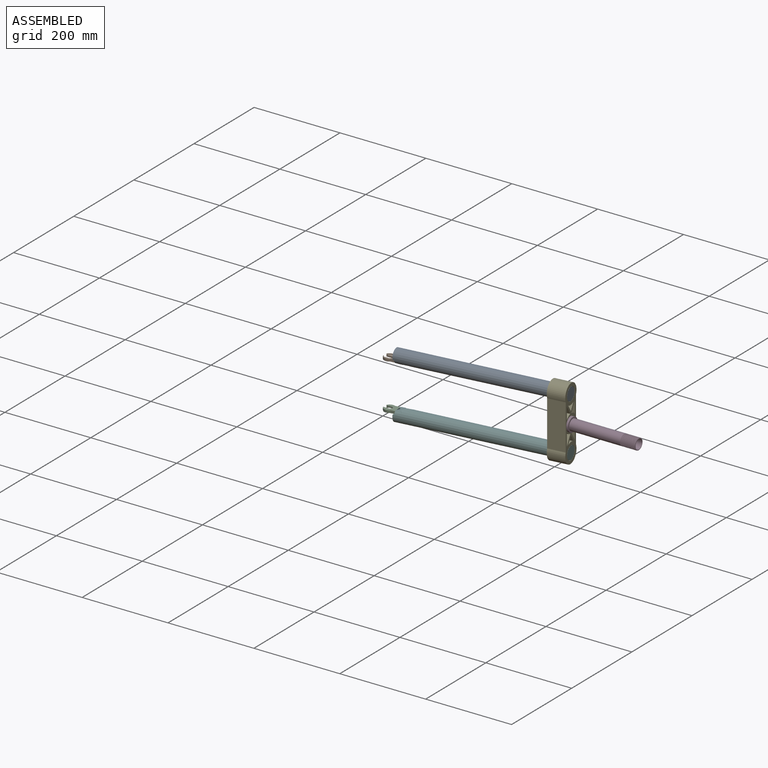
[diagram: assembled view]
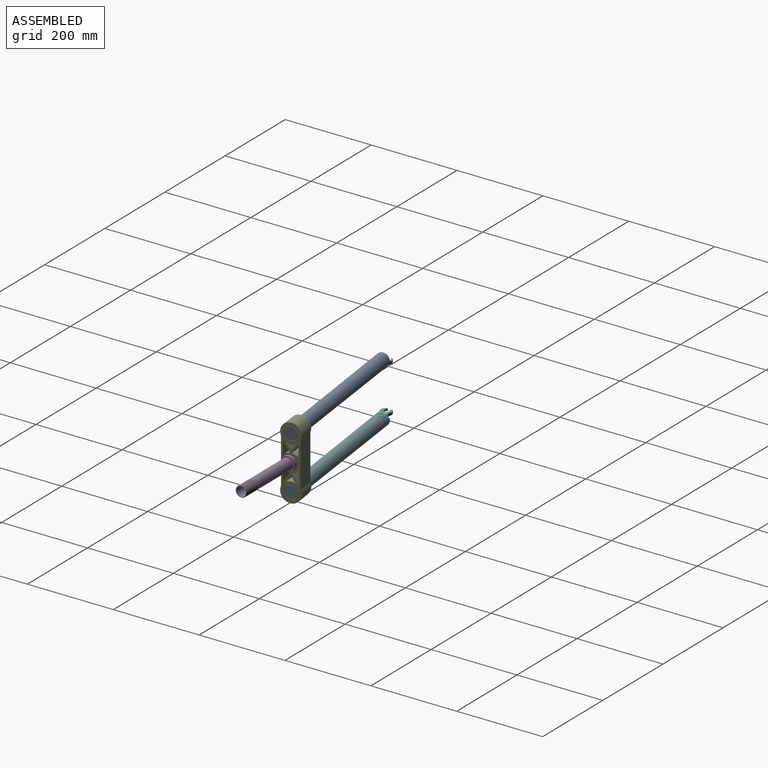
[diagram: assembled view, second angle]
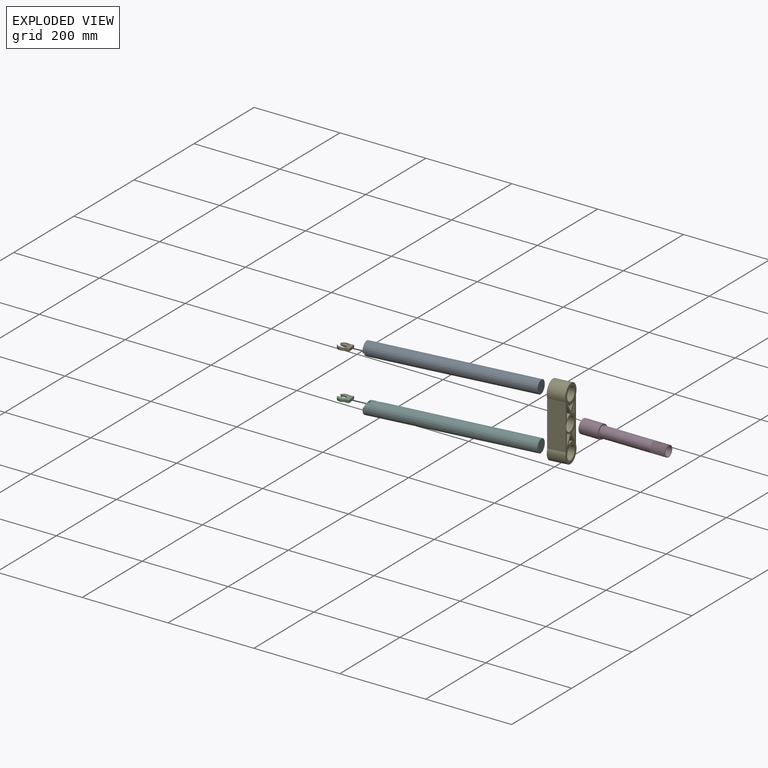
[diagram: exploded view]
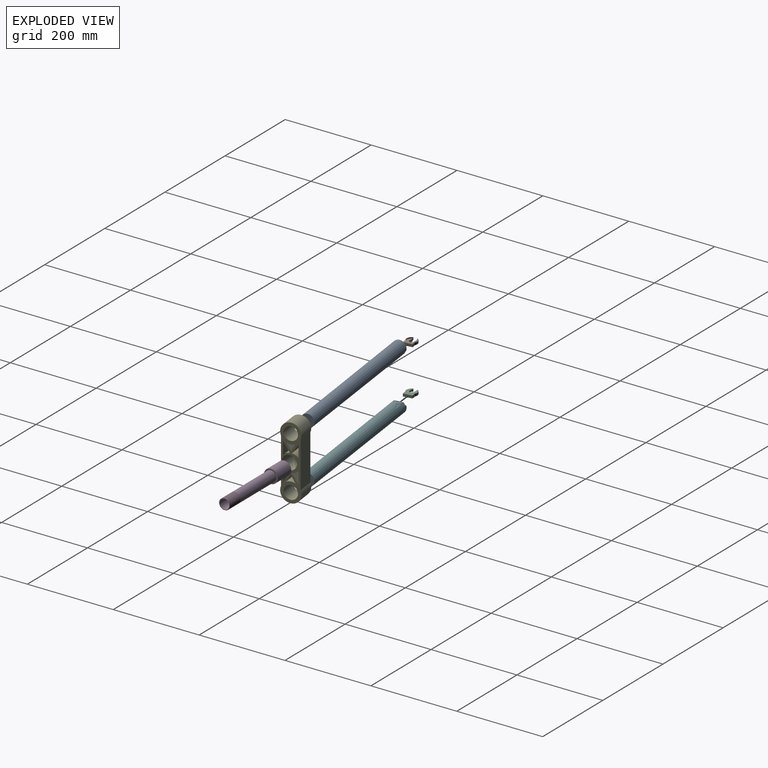
[diagram: exploded view, second angle]
ASSEMBLY  parts=6 mates=5
PART A: 10 faces, bbox 377.5x77.9x31 mm
  f0: cone r=12.71mm half-angle=89.9deg, axis (0.99,0.13,0), area 500.6mm2, adj f1,f6,f9
  f1: cone r=0.32mm half-angle=0.1deg, axis (-0.99,-0.13,0), area 8mm2, adj f0,f2
  f2: cone r=15.51mm half-angle=89.9deg, axis (0.99,0.13,0), area 522mm2, adj f1,f3,f7
  f3: cone r=15.51mm half-angle=0.1deg, axis (-0.99,-0.13,0), area 35749.7mm2, adj f2,f4,f7,f8,f9
  f4: plane 30.09x29.85mm, normal (0.99,0.13,0), area 711mm2, adj f3
  f5: cone r=12.75mm half-angle=89.9deg, axis (0.99,0.13,0), area 511mm2, adj f6
  f6: cone r=12.71mm half-angle=0deg, axis (0.99,0.13,0), area 29578.5mm2, adj f0,f5,f9
  f7: plane 29.7x6.86mm, normal (0,0,-1), area 93.4mm2, adj f2,f3,f8
  f8: plane 29.3x6.81mm, normal (-0.99,-0.13,0), area 176.9mm2, adj f3,f7,f9
  f9: plane 20.54x19.96mm, normal (-0.2,-0.03,-0.98), area 239.4mm2, adj f0,f3,f6,f8
PART B: 35 faces, bbox 31.1x27.6x6.2 mm
  f0: plane 29.65x24.84mm, normal (0,0,-1), area 429.1mm2, adj f6,f7,f8,f13,f16,f17,f18,f19
  f1: cylinder r=12.75mm len=20.17mm, axis (0,0,-1), area 125.4mm2, adj f8,f18,f21,f22
  f2: plane 29.65x24.84mm, normal (0,0,1), area 189.5mm2, adj f6,f7,f8,f11,f12,f14,f21,f28
  f3: cylinder r=11mm len=22mm, axis (0,0,1), area 66mm2, adj f24,f28,f31,f34
  f4: plane 21x19.75mm, normal (0,0,1), area 182.1mm2, adj f23,f26,f30,f31
  f5: cylinder r=12.75mm len=17.08mm, axis (0,0,-1), area 103.3mm2, adj f7,f12,f13,f14
  f6: plane 20.83x6.22mm, normal (0.99,0.13,0), area 130.5mm2, adj f0,f2,f7,f8
  f7: plane 10.85x6.22mm, normal (-0.13,0.99,0), area 62.5mm2, adj f0,f2,f5,f6,f12,f13
  f8: plane 10.85x6.22mm, normal (0.13,-0.99,0), area 62.5mm2, adj f0,f1,f2,f6,f18,f21
  f9: plane 11.63x5.22mm, normal (0.01,1,0), area 37.9mm2, adj f10,f19,f22,f29,f30,f33,f34
  f10: cylinder r=4.9mm len=9.8mm, axis (0,0,1), area 50.7mm2, adj f9,f11,f17,f26
  f11: plane 11.34x5.72mm, normal (-0.01,-1,0), area 37.5mm2, adj f2,f10,f14,f16,f23,f24,f27,f28
  f12: torus R=12.25mm, axis (0,0,-1), area 15.4mm2, adj f2,f5,f7,f14
  f13: torus R=12.25mm, axis (0,0,-1), area 15.1mm2, adj f0,f5,f7,f15
  f14: cylinder r=0.5mm len=5.72mm, axis (0,0,-1), area 5.7mm2, adj f2,f5,f11,f12,f15
  f15: sphere r=0.5mm, area 0.5mm2, adj f13,f14,f16
  f16: cylinder r=0.5mm len=11.35mm, axis (-1,0.01,0), area 8.9mm2, adj f0,f11,f15,f17
  f17: torus R=5.4mm, axis (0,0,-1), area 13.4mm2, adj f0,f10,f16,f19
  f18: torus R=12.25mm, axis (0,0,-1), area 18.4mm2, adj f0,f1,f8,f20
  f19: cylinder r=0.5mm len=11.64mm, axis (1,-0.01,0), area 9.1mm2, adj f0,f9,f17,f20
  f20: sphere r=0.5mm, area 0.5mm2, adj f18,f19,f22
  f21: torus R=12.25mm, axis (0,0,-1), area 18.4mm2, adj f1,f2,f8,f25
  f22: cylinder r=0.5mm len=5.22mm, axis (0,0,-1), area 5.2mm2, adj f1,f9,f20,f25
  f23: cylinder r=0.5mm len=9.32mm, axis (1,-0.01,0), area 7.3mm2, adj f4,f11,f26,f27
  f24: cylinder r=0.5mm len=1.57mm, axis (0,0,1), area 0.7mm2, adj f3,f11,f27,f28
  f25: sphere r=0.5mm, area 0.5mm2, adj f21,f22,f29
  f26: torus R=5.4mm, axis (0,0,1), area 13.4mm2, adj f4,f10,f23,f30
  f27: bspline ~1.51x1.12mm, area 0.8mm2, adj f11,f23,f24,f31
  f28: torus R=11.5mm, axis (0,0,-1), area 46.9mm2, adj f2,f3,f11,f24,f32
  f29: cylinder r=0.5mm len=0.84mm, axis (-1,0.01,0), area 0.7mm2, adj f2,f9,f25,f32
  f30: cylinder r=0.5mm len=9.68mm, axis (-1,0.01,0), area 7.6mm2, adj f4,f9,f26,f33
  f31: torus R=10.5mm, axis (0,0,1), area 44.8mm2, adj f3,f4,f27,f33
  f32: sphere r=0.5mm, area 0.3mm2, adj f28,f29,f34
  f33: bspline ~1.22x1.2mm, area 0.8mm2, adj f9,f30,f31,f34
  f34: cylinder r=0.5mm len=1.13mm, axis (0,0,1), area 0.6mm2, adj f3,f9,f32,f33
PART C: 44 faces, bbox 31.1x27.6x6.2 mm
  f0: plane 29.65x24.84mm, normal (0,0,1), area 429.1mm2, adj f6,f7,f8,f13,f15,f25,f34,f35
  f1: plane 29.65x24.84mm, normal (0,0,-1), area 189.1mm2, adj f6,f7,f8,f20,f30,f37,f41,f43
  f2: cylinder r=12.75mm len=20.17mm, axis (0,0,-1), area 125.4mm2, adj f7,f13,f19,f20
  f3: cylinder r=11mm len=22mm, axis (0,0,-1), area 66mm2, adj f28,f29,f36,f37
  f4: plane 21x19.75mm, normal (0,0,-1), area 182.1mm2, adj f17,f18,f27,f28
  f5: cylinder r=12.75mm len=17.08mm, axis (0,0,-1), area 103.3mm2, adj f6,f34,f40,f43
  f6: plane 10.85x6.22mm, normal (-0.13,0.99,0), area 62.5mm2, adj f0,f1,f5,f8,f34,f43
  f7: plane 10.85x6.22mm, normal (0.13,-0.99,0), area 62.5mm2, adj f0,f1,f2,f8,f13,f20
  f8: plane 20.83x6.22mm, normal (0.99,0.13,0), area 130.5mm2, adj f0,f1,f6,f7
  f9: plane 11.6x5.22mm, normal (0.01,1,0), area 37.8mm2, adj f15,f16,f18,f19,f23,f29,f30
  f10: cylinder r=4.9mm len=9.8mm, axis (0,0,1), area 50.6mm2, adj f16,f17,f25,f26
  f11: plane 11.31x5.22mm, normal (-0.01,-1,0), area 37mm2, adj f26,f27,f32,f35,f36,f40,f41
  f12: sphere r=0.5mm, area 0mm2, adj f16,f17,f18
  f13: torus R=12.25mm, axis (0,0,-1), area 18.4mm2, adj f0,f2,f7,f14
  f14: sphere r=0.5mm, area 0.5mm2, adj f13,f15,f19
  f15: cylinder r=0.5mm len=11.61mm, axis (-1,0.01,0), area 9.1mm2, adj f0,f9,f14,f21
  f16: cylinder r=0.5mm len=3.09mm, axis (0,0,1), area 0.2mm2, adj f9,f10,f12,f21
  f17: torus R=5.4mm, axis (0,0,-1), area 13.4mm2, adj f4,f10,f12,f22
  f18: cylinder r=0.5mm len=9.65mm, axis (1,-0.01,0), area 7.6mm2, adj f4,f9,f12,f23
  f19: cylinder r=0.5mm len=5.22mm, axis (0,0,-1), area 5.2mm2, adj f2,f9,f14,f24
  f20: torus R=12.25mm, axis (0,0,-1), area 18.4mm2, adj f1,f2,f7,f24
  f21: sphere r=0.5mm, area 0mm2, adj f15,f16,f25
  f22: sphere r=0.5mm, area 0mm2, adj f17,f26,f27
  f23: bspline ~1.47x1.11mm, area 0.8mm2, adj f9,f18,f28,f29
  f24: sphere r=0.5mm, area 0.5mm2, adj f19,f20,f30
  f25: torus R=5.4mm, axis (0,0,-1), area 13.4mm2, adj f0,f10,f21,f31
  f26: cylinder r=0.5mm len=3.09mm, axis (0,0,1), area 0.2mm2, adj f10,f11,f22,f31
  f27: cylinder r=0.5mm len=9.3mm, axis (-1,0.01,0), area 7.3mm2, adj f4,f11,f22,f32
  f28: torus R=10.5mm, axis (0,0,-1), area 44.8mm2, adj f3,f4,f23,f32
  f29: cylinder r=0.5mm len=1.13mm, axis (0,0,-1), area 0.6mm2, adj f3,f9,f23,f33
  f30: cylinder r=0.5mm len=0.84mm, axis (1,-0.01,0), area 0.7mm2, adj f1,f9,f24,f33
  f31: sphere r=0.5mm, area 0mm2, adj f25,f26,f35
  f32: bspline ~1.46x1.05mm, area 0.8mm2, adj f11,f27,f28,f36
  f33: sphere r=0.5mm, area 0.3mm2, adj f29,f30,f37
  f34: torus R=12.25mm, axis (0,0,-1), area 15.1mm2, adj f0,f5,f6,f38
  f35: cylinder r=0.5mm len=11.32mm, axis (1,-0.01,0), area 8.9mm2, adj f0,f11,f31,f38
  f36: cylinder r=0.5mm len=1.13mm, axis (0,0,-1), area 0.6mm2, adj f3,f11,f32,f39
  f37: torus R=11.5mm, axis (0,0,-1), area 46.6mm2, adj f1,f3,f33,f39
  f38: sphere r=0.5mm, area 0.5mm2, adj f34,f35,f40
  f39: sphere r=0.5mm, area 0.3mm2, adj f36,f37,f41
  f40: cylinder r=0.5mm len=5.22mm, axis (0,0,-1), area 5.4mm2, adj f5,f11,f38,f42
  f41: cylinder r=0.5mm len=0.86mm, axis (-1,0.01,0), area 0.7mm2, adj f1,f11,f39,f42
  f42: sphere r=0.5mm, area 0.5mm2, adj f40,f41,f43
  f43: torus R=12.25mm, axis (0,0,-1), area 15.1mm2, adj f1,f5,f6,f42
PART D: 42 faces, bbox 200.2x32.9x32.9 mm
  f0: cylinder r=12.7mm len=120.31mm, axis (-1,0,0), area 9493.2mm2, adj f31,f37,f39,f40,f41
  f1: cylinder r=12.7mm len=15.52mm, axis (-1,0,0), area 1.2mm2, adj f2,f36,f39,f40
  f2: cylinder r=12.7mm len=25.4mm, axis (-1,0,0), area 4mm2, adj f1,f3,f39,f40
  f3: cylinder r=12.7mm len=25.4mm, axis (-1,0,0), area 4.6mm2, adj f2,f4,f39,f40
  f4: cylinder r=12.7mm len=25.4mm, axis (-1,0,0), area 3.8mm2, adj f3,f5,f39,f40
  f5: cylinder r=12.7mm len=25.4mm, axis (-1,0,0), area 4.6mm2, adj f4,f6,f39,f40
  f6: cylinder r=12.7mm len=25.4mm, axis (-1,0,0), area 4.7mm2, adj f5,f7,f39,f40
  f7: cylinder r=12.7mm len=25.4mm, axis (-1,0,0), area 5.4mm2, adj f6,f8,f39,f40
  f8: cylinder r=12.7mm len=25.4mm, axis (-1,0,0), area 4.2mm2, adj f7,f9,f39,f40
  f9: cylinder r=12.7mm len=25.4mm, axis (-1,0,0), area 4.1mm2, adj f8,f10,f39,f40
  f10: cylinder r=12.7mm len=25.4mm, axis (-1,0,0), area 5mm2, adj f9,f11,f39,f40
  f11: cylinder r=12.7mm len=25.4mm, axis (-1,0,0), area 5.2mm2, adj f10,f12,f39,f40
  f12: cylinder r=12.7mm len=25.4mm, axis (-1,0,0), area 5.6mm2, adj f11,f13,f39,f40
  f13: cylinder r=12.7mm len=25.4mm, axis (-1,0,0), area 3.7mm2, adj f12,f14,f39,f40
  f14: cylinder r=12.7mm len=25.4mm, axis (-1,0,0), area 4.1mm2, adj f13,f15,f39,f40
  f15: cylinder r=12.7mm len=25.4mm, axis (-1,0,0), area 4.9mm2, adj f14,f16,f39,f40
  f16: cylinder r=12.7mm len=25.4mm, axis (-1,0,0), area 4.4mm2, adj f15,f17,f39,f40
  f17: cylinder r=12.7mm len=25.4mm, axis (-1,0,0), area 5.4mm2, adj f16,f18,f39,f40
  f18: cylinder r=12.7mm len=25.4mm, axis (-1,0,0), area 4.9mm2, adj f17,f19,f39,f40
  f19: cylinder r=12.7mm len=25.4mm, axis (-1,0,0), area 4.1mm2, adj f18,f20,f39,f40
  f20: cylinder r=12.7mm len=25.4mm, axis (-1,0,0), area 4.4mm2, adj f19,f21,f39,f40
  f21: cylinder r=12.7mm len=25.4mm, axis (-1,0,0), area 4.8mm2, adj f20,f22,f39,f40
  f22: cylinder r=12.7mm len=25.4mm, axis (-1,0,0), area 4.1mm2, adj f21,f23,f39,f40
  f23: cylinder r=12.7mm len=25.4mm, axis (-1,0,0), area 4.1mm2, adj f22,f24,f39,f40
  f24: cylinder r=12.7mm len=25.4mm, axis (-1,0,0), area 4.4mm2, adj f23,f25,f39,f40
  f25: cylinder r=12.7mm len=25.4mm, axis (-1,0,0), area 4.8mm2, adj f24,f26,f39,f40
  f26: cylinder r=12.7mm len=25.4mm, axis (-1,0,0), area 4.4mm2, adj f25,f27,f39,f40
  f27: cylinder r=12.7mm len=25.4mm, axis (-1,0,0), area 4.9mm2, adj f26,f28,f39,f40
  f28: cylinder r=12.7mm len=25.4mm, axis (-1,0,0), area 5.4mm2, adj f27,f29,f39,f40
  f29: cylinder r=12.7mm len=25.4mm, axis (-1,0,0), area 5mm2, adj f28,f30,f39,f40
  f30: cylinder r=12.7mm len=25.4mm, axis (-1,0,0), area 5mm2, adj f29,f31,f39,f40
  f31: cylinder r=12.7mm len=25.4mm, axis (-1,0,0), area 4.6mm2, adj f0,f30,f39,f40
  f32: plane 32.15x32.15mm, normal (-1,0,0), area 526.8mm2, adj f33,f38
  f33: cylinder r=9.53mm len=45mm, axis (-1,0,0), area 2693.1mm2, adj f32,f34
  f34: plane 22.3x22.3mm, normal (1,0,0), area 105.5mm2, adj f33,f35
  f35: cylinder r=11.15mm len=153.85mm, axis (-1,0,0), area 10778.3mm2, adj f34,f36
  f36: plane 25.33x25.3mm, normal (1,0,0), area 82.3mm2, adj f1,f35,f39,f40
  f37: plane 32.15x32.15mm, normal (1,0,0), area 305.1mm2, adj f0,f38
  f38: cylinder r=16.08mm len=45mm, axis (-1,0,0), area 4545.1mm2, adj f32,f37
  f39: bspline ~36.03x29.32mm, area 2567.6mm2, adj f0,f1,f2,f3,f4,f5,f6,f7
  f40: bspline ~35.48x25.4mm, area 2539.3mm2, adj f0,f1,f2,f3,f4,f5,f6,f7
  f41: plane 1.06x0.92mm, normal (0,0,-1), area 0.5mm2, adj f0,f39,f40
PART E: 27 faces, bbox 45.5x50.7x170 mm
  f0: plane 39.68x29.3mm, normal (0.13,-0.99,0), area 1171.9mm2, adj f1,f23,f24,f25
  f1: cylinder r=21.07mm len=41.47mm, axis (-0.99,-0.13,0), area 665mm2, adj f0,f23,f24,f25
  f2: plane 41.47x21.47mm, normal (0.11,-0.83,0.55), area 1029.1mm2, adj f3,f15,f24,f25
  f3: cylinder r=21.07mm len=41.47mm, axis (-0.99,-0.13,0), area 665mm2, adj f2,f15,f24,f25
  f4: plane 41.47x21.32mm, normal (-0.11,0.83,-0.55), area 1024.3mm2, adj f5,f16,f24,f25
  f5: cylinder r=21.07mm len=41.47mm, axis (-0.99,-0.13,0), area 664.8mm2, adj f4,f16,f24,f25
  f6: cylinder r=21.07mm len=41.47mm, axis (-0.99,-0.13,0), area 664.8mm2, adj f7,f17,f24,f25
  f7: plane 41.47x21.32mm, normal (0.11,-0.83,-0.55), area 1024.3mm2, adj f6,f17,f24,f25
  f8: cylinder r=22.99mm len=42.35mm, axis (-0.99,-0.13,0), area 878.2mm2, adj f9,f18,f24,f25
  f9: plane 41.01x15.89mm, normal (-0.11,0.83,0.55), area 763.4mm2, adj f8,f18,f24,f25
  f10: plane 41.02x16.06mm, normal (-0.11,0.83,-0.55), area 769.7mm2, adj f11,f19,f24,f25
  f11: cylinder r=23mm len=42.36mm, axis (-0.99,-0.13,0), area 881.8mm2, adj f10,f19,f24,f25
  f12: plane 105.57x39.68mm, normal (0.13,-0.99,0), area 4222.9mm2, adj f13,f20,f24,f25
  f13: cylinder r=22.99mm len=50.67mm, axis (-0.99,-0.13,0), area 3646.6mm2, adj f12,f14,f24,f25
  f14: plane 105.58x39.68mm, normal (-0.13,0.99,0), area 4223.3mm2, adj f13,f20,f24,f25
  f15: plane 39.68x29.29mm, normal (-0.13,0.99,0), area 1171.8mm2, adj f2,f3,f24,f25
  f16: plane 39.68x29.15mm, normal (0.13,-0.99,0), area 1166mm2, adj f4,f5,f24,f25
  f17: plane 39.68x29.15mm, normal (-0.13,0.99,0), area 1166mm2, adj f6,f7,f24,f25
  f18: plane 41.01x15.89mm, normal (0.11,-0.83,0.55), area 763.4mm2, adj f8,f9,f24,f25
  f19: plane 41.02x16.06mm, normal (0.11,-0.83,-0.55), area 769.7mm2, adj f10,f11,f24,f25
  f20: cylinder r=23mm len=50.68mm, axis (-0.99,-0.13,0), area 3648.4mm2, adj f12,f14,f24,f25
  f21: cylinder r=15.5mm len=43.59mm, axis (-0.99,-0.13,0), area 3895.6mm2, adj f24,f25
  f22: cylinder r=15.5mm len=43.59mm, axis (-0.99,-0.13,0), area 3895.6mm2, adj f24,f25
  f23: plane 41.47x21.47mm, normal (-0.11,0.83,0.55), area 1029.2mm2, adj f0,f1,f24,f25
  f24: plane 169.98x45.63mm, normal (0.99,0.13,0), area 3584.5mm2, adj f0,f1,f2,f3,f4,f5,f6,f7
  f25: plane 169.98x45.63mm, normal (-0.99,-0.13,0), area 3584.5mm2, adj f0,f1,f2,f3,f4,f5,f6,f7
  f26: cylinder r=16.07mm len=44.44mm, axis (-1,0,0), area 4072.7mm2, adj f24,f25
PART F: 10 faces, bbox 377.5x77.9x31 mm
  f0: cone r=12.71mm half-angle=89.9deg, axis (0.99,0.13,0), area 500.6mm2, adj f1,f6,f8
  f1: cone r=12.75mm half-angle=0deg, axis (0.99,0.13,0), area 29578.5mm2, adj f0,f2,f8
  f2: cone r=12.75mm half-angle=89.9deg, axis (0.99,0.13,0), area 511mm2, adj f1
  f3: plane 30.09x29.85mm, normal (0.99,0.13,0), area 711mm2, adj f4
  f4: cone r=15.51mm half-angle=0.1deg, axis (-0.99,-0.13,0), area 35749.7mm2, adj f3,f5,f7,f8,f9
  f5: cone r=15.51mm half-angle=89.9deg, axis (0.99,0.13,0), area 522mm2, adj f4,f6,f7
  f6: cone r=0.32mm half-angle=0.1deg, axis (-0.99,-0.13,0), area 8mm2, adj f0,f5
  f7: plane 29.7x6.86mm, normal (0,0,1), area 93.4mm2, adj f4,f5,f9
  f8: plane 20.54x19.96mm, normal (-0.2,-0.03,0.98), area 239.4mm2, adj f0,f1,f4,f9
  f9: plane 29.3x6.81mm, normal (-0.99,-0.13,0), area 176.9mm2, adj f4,f7,f8
PLACE A t=(-1.86,22.71,-402.58)mm
PLACE B rot(axis=(-1,0,0),0.5deg) t=(38.86,24.95,-338.69)mm
PLACE C rot(axis=(1,0,0),0.5deg) t=(38.86,30.45,-402.23)mm
PLACE D t=(57.78,10.38,-83.96)mm
PLACE E t=(-1.65,22.76,-402.5)mm
PLACE F t=(-1.86,22.75,-402.62)mm
MATE fastened C.f8 <-> F.f9  axis (0.99,0.13,0) through (-141.94,-33.67,-138.18)mm
MATE fastened F.f6 <-> E.f21  axis (0.99,0.13,0) through (228.58,13.48,-146.13)mm
MATE fastened B.f6 <-> A.f8  axis (0.99,0.13,0) through (-141.94,-33.71,-30.05)mm
MATE fastened A.f1 <-> E.f8  axis (0.99,0.13,0) through (228.58,13.44,-22.1)mm
MATE fastened D.f0 <-> E.f26  axis (-1,0,0) through (212.81,10.38,-83.96)mm
